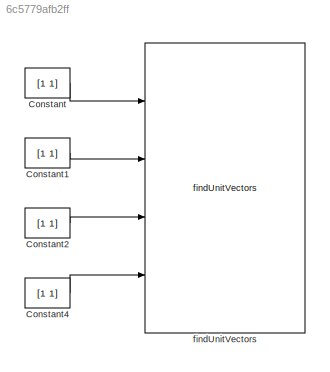
MODEL slx_6c5779afb2ff
KIND model
CONFIG AbsTol = auto
CONFIG EnableMultiTasking = off
CONFIG FixedStep = auto
CONFIG MaxStep = auto
CONFIG MinStep = auto
CONFIG RelTol = 1e-3
CONFIG SampleTimeConstraint = Unconstrained
CONFIG Solver = VariableStepAuto
CONFIG SolverName = VariableStepAuto
CONFIG StartTime = 0.0
CONFIG StopTime = 0
BLOCK [Constant] Constant
  Value = [1 1]
BLOCK [Constant] Constant1
  Value = [1 1]
BLOCK [Constant] Constant2
  Value = [1 1]
BLOCK [Constant] Constant4
  Value = [1 1]
BLOCK [Reference] findUnitVectors  REF=findUnitVectors_ul/findUnitVectors
  Ports = [4, 4]
  SourceBlock = findUnitVectors_ul/findUnitVectors
LINE Constant1:1 -> findUnitVectors:2
LINE Constant2:1 -> findUnitVectors:3
LINE Constant4:1 -> findUnitVectors:4
LINE Constant:1 -> findUnitVectors:1
